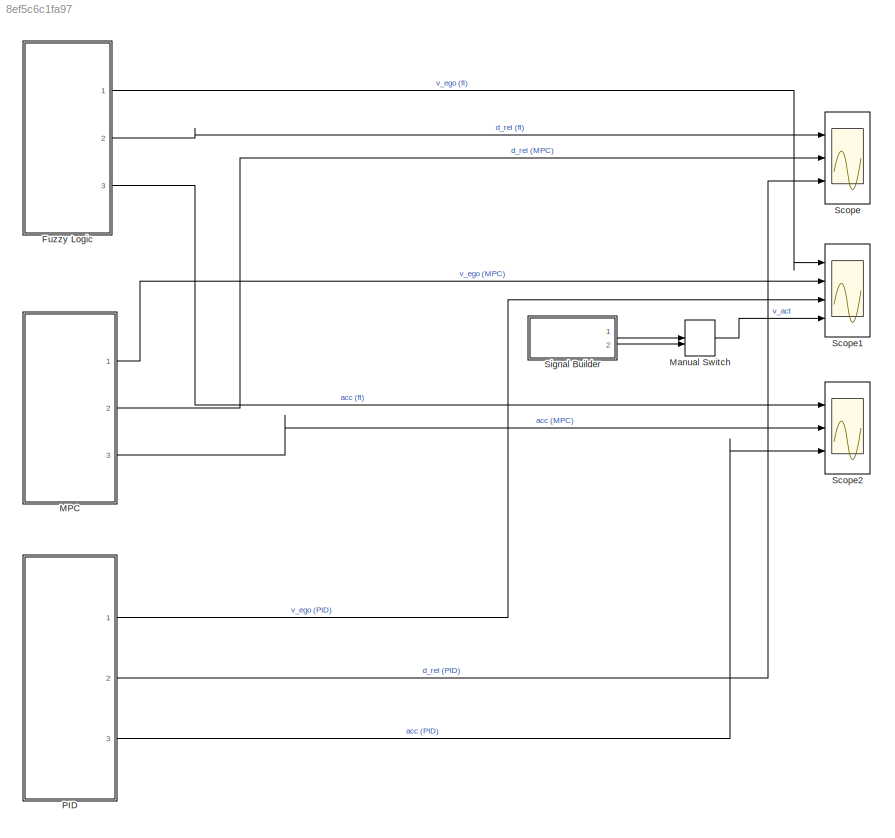
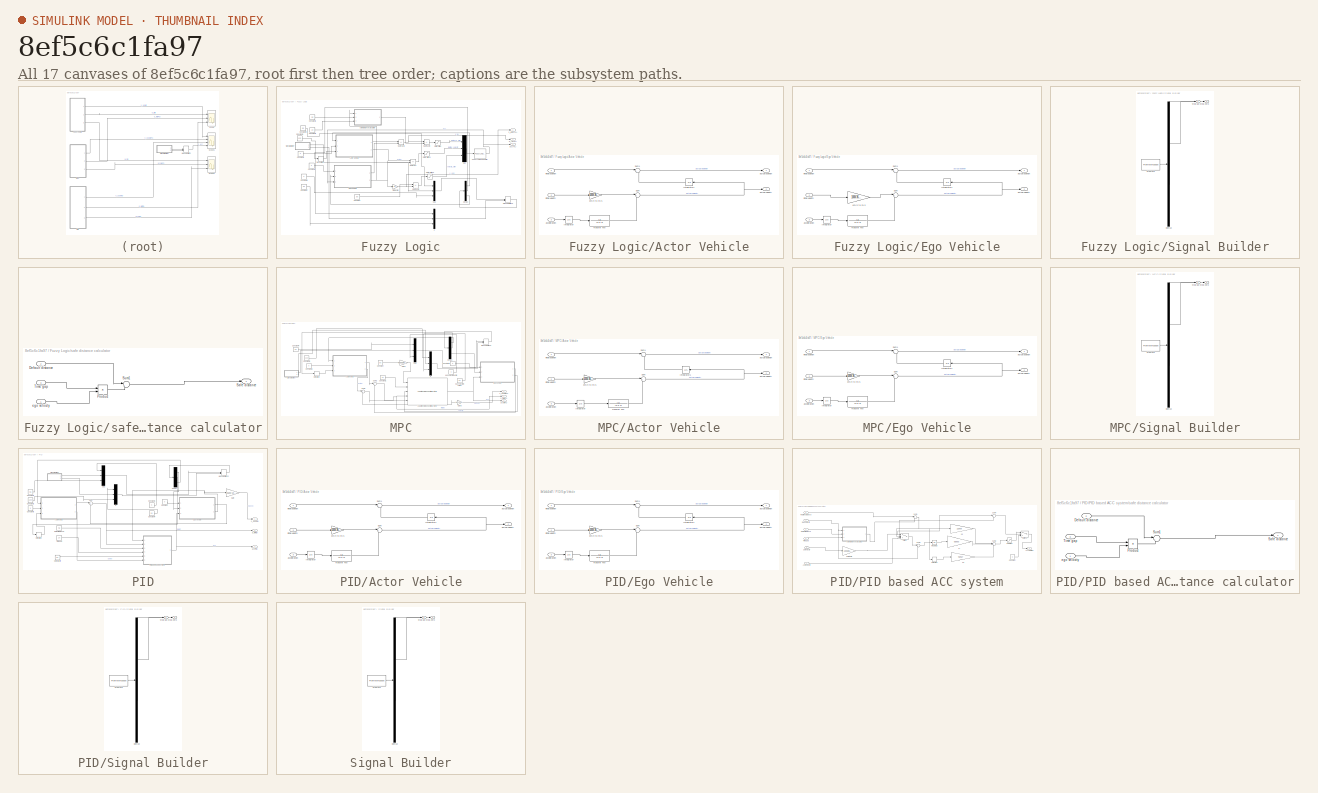
[diagram: thumbnail index - all 17 canvases of the model, root first then tree order]
MODEL slx_8ef5c6c1fa97
KIND model
CONFIG AbsTol = auto
CONFIG EnableMultiTasking = off
CONFIG FixedStep = auto
CONFIG MaxStep = auto
CONFIG MinStep = auto
CONFIG RelTol = 1e-3
CONFIG SampleTimeConstraint = Unconstrained
CONFIG SolverName = VariableStepAuto
CONFIG StartTime = 0.0
CONFIG StopTime = 100
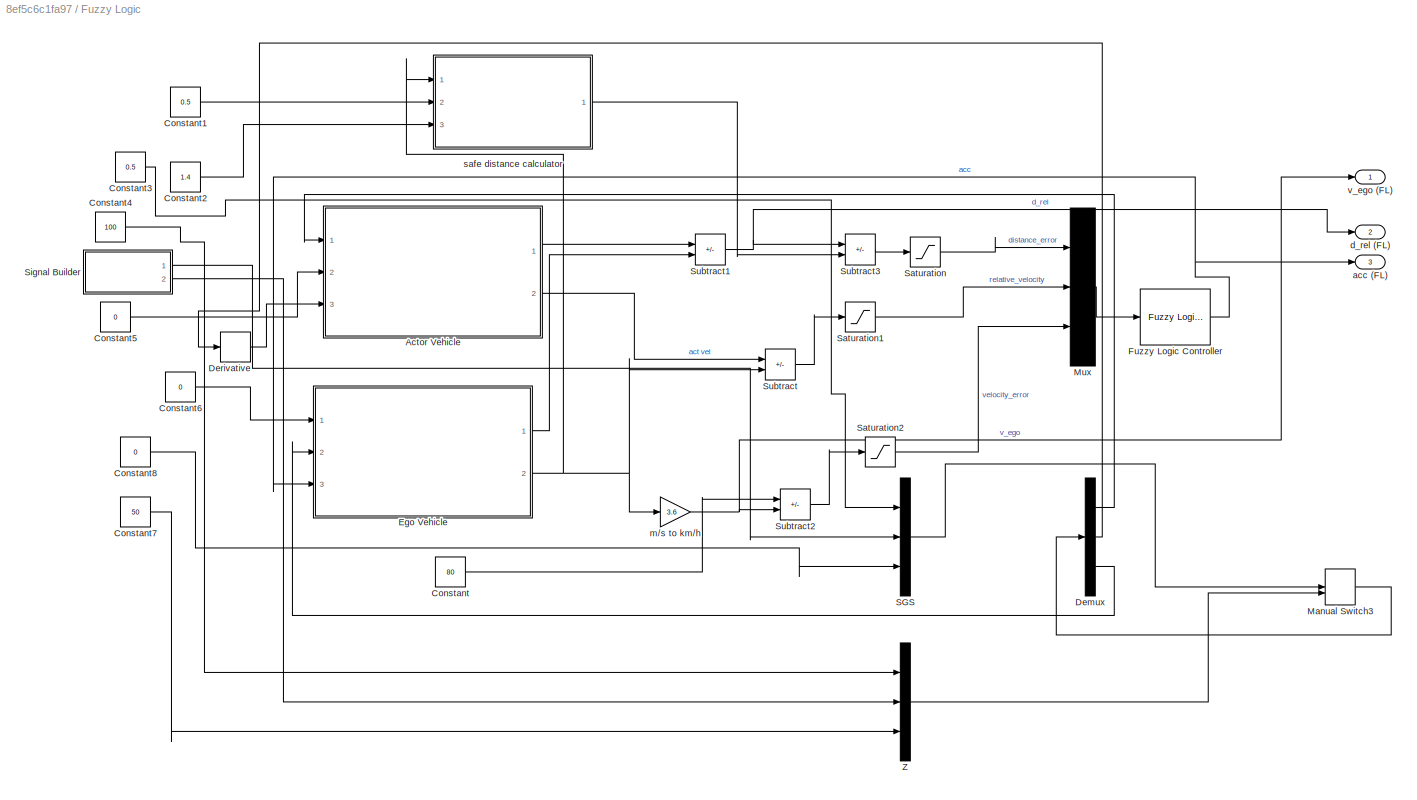
BLOCK [SubSystem] Fuzzy Logic
  Ports = [0, 3]
  RequestExecContextInheritance = off
BLOCK [SubSystem] Fuzzy Logic/Actor Vehicle
  Ports = [3, 2]
  RequestExecContextInheritance = off
BLOCK [Integrator] Fuzzy Logic/Actor Vehicle/Integrator
  Ports = [1, 1]
  ZeroCross = off
BLOCK [Integrator] Fuzzy Logic/Actor Vehicle/Integrator1
  Ports = [1, 1]
  ZeroCross = off
BLOCK [Sum] Fuzzy Logic/Actor Vehicle/Sum
  Inputs = |++
  Ports = [2, 1]
BLOCK [Sum] Fuzzy Logic/Actor Vehicle/Sum1
  Inputs = |++
  Ports = [2, 1]
BLOCK [TransferFcn] Fuzzy Logic/Actor Vehicle/Transfer Fcn
  Denominator = [0.5 1]
BLOCK [Inport] Fuzzy Logic/Actor Vehicle/acceleration
  Port = 3
BLOCK [Outport] Fuzzy Logic/Actor Vehicle/actual position
BLOCK [Outport] Fuzzy Logic/Actor Vehicle/actual velocity
  Port = 2
BLOCK [Inport] Fuzzy Logic/Actor Vehicle/initial position
BLOCK [Inport] Fuzzy Logic/Actor Vehicle/initial velocity
  Port = 2
BLOCK [Gain] Fuzzy Logic/Actor Vehicle/km//h to m//s
  Gain = 1000/3600
BLOCK [Constant] Fuzzy Logic/Constant
  SampleTime = 1
  Value = 80
BLOCK [Constant] Fuzzy Logic/Constant1
  SampleTime = 1
  Value = 0.5
BLOCK [Constant] Fuzzy Logic/Constant2
  SampleTime = 1
  Value = 1.4
BLOCK [Constant] Fuzzy Logic/Constant3
  SampleTime = 1
  Value = 0.5
BLOCK [Constant] Fuzzy Logic/Constant4
  SampleTime = 1
  Value = 100
BLOCK [Constant] Fuzzy Logic/Constant5
  SampleTime = 1
  Value = 0
BLOCK [Constant] Fuzzy Logic/Constant6
  SampleTime = 1
  Value = 0
BLOCK [Constant] Fuzzy Logic/Constant7
  SampleTime = 1
  Value = 50
BLOCK [Constant] Fuzzy Logic/Constant8
  SampleTime = 1
  Value = 0
BLOCK [Demux] Fuzzy Logic/Demux
  Outputs = 3
  Ports = [1, 3]
BLOCK [Derivative] Fuzzy Logic/Derivative
BLOCK [SubSystem] Fuzzy Logic/Ego Vehicle
  Ports = [3, 2]
  RequestExecContextInheritance = off
BLOCK [Integrator] Fuzzy Logic/Ego Vehicle/Integrator
  Ports = [1, 1]
  ZeroCross = off
BLOCK [Integrator] Fuzzy Logic/Ego Vehicle/Integrator1
  Ports = [1, 1]
  ZeroCross = off
BLOCK [Sum] Fuzzy Logic/Ego Vehicle/Sum
  Inputs = |++
  Ports = [2, 1]
BLOCK [Sum] Fuzzy Logic/Ego Vehicle/Sum1
  Inputs = |++
  Ports = [2, 1]
BLOCK [TransferFcn] Fuzzy Logic/Ego Vehicle/Transfer Fcn
  Denominator = [0.5 1]
BLOCK [Inport] Fuzzy Logic/Ego Vehicle/acceleration
  Port = 3
BLOCK [Outport] Fuzzy Logic/Ego Vehicle/actual position
BLOCK [Outport] Fuzzy Logic/Ego Vehicle/actual velocity
  Port = 2
BLOCK [Inport] Fuzzy Logic/Ego Vehicle/initial position
BLOCK [Inport] Fuzzy Logic/Ego Vehicle/initial velocity
  Port = 2
BLOCK [Gain] Fuzzy Logic/Ego Vehicle/km//h to m//s
  Gain = 1000/3600
BLOCK [Reference] Fuzzy Logic/Fuzzy Logic Controller  REF=fuzblock/Fuzzy Logic   (lib defined in mdl_858b3b3e7478)
Controller
  Ports = [1, 1]
  SourceBlock = fuzblock/Fuzzy Logic \nController
  SourceProductBaseCode = FL
  SourceType = Fuzzy Inference System
BLOCK [ManualSwitch] Fuzzy Logic/Manual Switch3
  CurrentSetting = 0
BLOCK [Mux] Fuzzy Logic/Mux
  DisplayOption = bar
  Inputs = 3
  Ports = [3, 1]
BLOCK [Mux] Fuzzy Logic/SGS
  DisplayOption = bar
  Inputs = 3
  Ports = [3, 1]
BLOCK [Saturate] Fuzzy Logic/Saturation
  LinearizeAsGain = off
  LowerLimit = -1
  UpperLimit = 1
  ZeroCross = off
BLOCK [Saturate] Fuzzy Logic/Saturation1
  LinearizeAsGain = off
  LowerLimit = -1
  UpperLimit = 1
  ZeroCross = off
BLOCK [Saturate] Fuzzy Logic/Saturation2
  LinearizeAsGain = off
  LowerLimit = -1
  UpperLimit = 1
  ZeroCross = off
BLOCK [SubSystem] Fuzzy Logic/Signal Builder
  ClipboardFcn = sigbuilder_block('clipboard');
  CloseFcn = sigbuilder_block('close');
  ContinueFcn = sigbuilder_block('continue');
  CopyFcn = sigbuilder_block('copy');
  DeleteFcn = sigbuilder_block('delete');
  LoadFcn = sigbuilder_block('load');
  MaskHideContents = on
  ModelCloseFcn = sigbuilder_block('modelClose');
  NameChangeFcn = sigbuilder_block('namechange');
  OpenFcn = sigbuilder_block('open',[393 134.4 550.8 400.2 ]);
  PauseFcn = sigbuilder_block('pause');
  Ports = [0, 2]
  PreSaveFcn = sigbuilder_block('preSave');
  RequestExecContextInheritance = off
  StartFcn = sigbuilder_block('start');
  StopFcn = sigbuilder_block('stop');
  Tag = STV Subsys
BLOCK [Demux] Fuzzy Logic/Signal Builder/Demux
  DisplayOption = none
  Outputs = 2
  Ports = [1, 2]
  Tag = STV Demux
BLOCK [FromWorkspace] Fuzzy Logic/Signal Builder/FromWs
  Tag = STV FromWs
  VariableName = tuvar
BLOCK [Outport] Fuzzy Logic/Signal Builder/stop-go-stop
  Tag = STV Outport
BLOCK [Outport] Fuzzy Logic/Signal Builder/zero
  Port = 2
  Tag = STV Outport
BLOCK [Sum] Fuzzy Logic/Subtract
  IconShape = rectangular
  Inputs = +-
  Ports = [2, 1]
BLOCK [Sum] Fuzzy Logic/Subtract1
  IconShape = rectangular
  Inputs = +-
  Ports = [2, 1]
BLOCK [Sum] Fuzzy Logic/Subtract2
  IconShape = rectangular
  Inputs = +-
  Ports = [2, 1]
BLOCK [Sum] Fuzzy Logic/Subtract3
  IconShape = rectangular
  Inputs = +-
  Ports = [2, 1]
BLOCK [Mux] Fuzzy Logic/Z
  DisplayOption = bar
  Inputs = 3
  Ports = [3, 1]
BLOCK [Outport] Fuzzy Logic/acc (FL)
  Port = 3
BLOCK [Outport] Fuzzy Logic/d_rel (FL)
  Port = 2
BLOCK [Gain] Fuzzy Logic/m//s to km//h
  Gain = 3.6
BLOCK [SubSystem] Fuzzy Logic/safe distance calculator
  Ports = [3, 1]
  RequestExecContextInheritance = off
BLOCK [Inport] Fuzzy Logic/safe distance calculator/Default distance
  Port = 2
BLOCK [Product] Fuzzy Logic/safe distance calculator/Product
  Ports = [2, 1]
BLOCK [Outport] Fuzzy Logic/safe distance calculator/Safe distance
BLOCK [Sum] Fuzzy Logic/safe distance calculator/Sum1
  Inputs = |++
  Ports = [2, 1]
BLOCK [Inport] Fuzzy Logic/safe distance calculator/Time gap
  Port = 3
BLOCK [Inport] Fuzzy Logic/safe distance calculator/ego velocity
BLOCK [Outport] Fuzzy Logic/v_ego (FL)
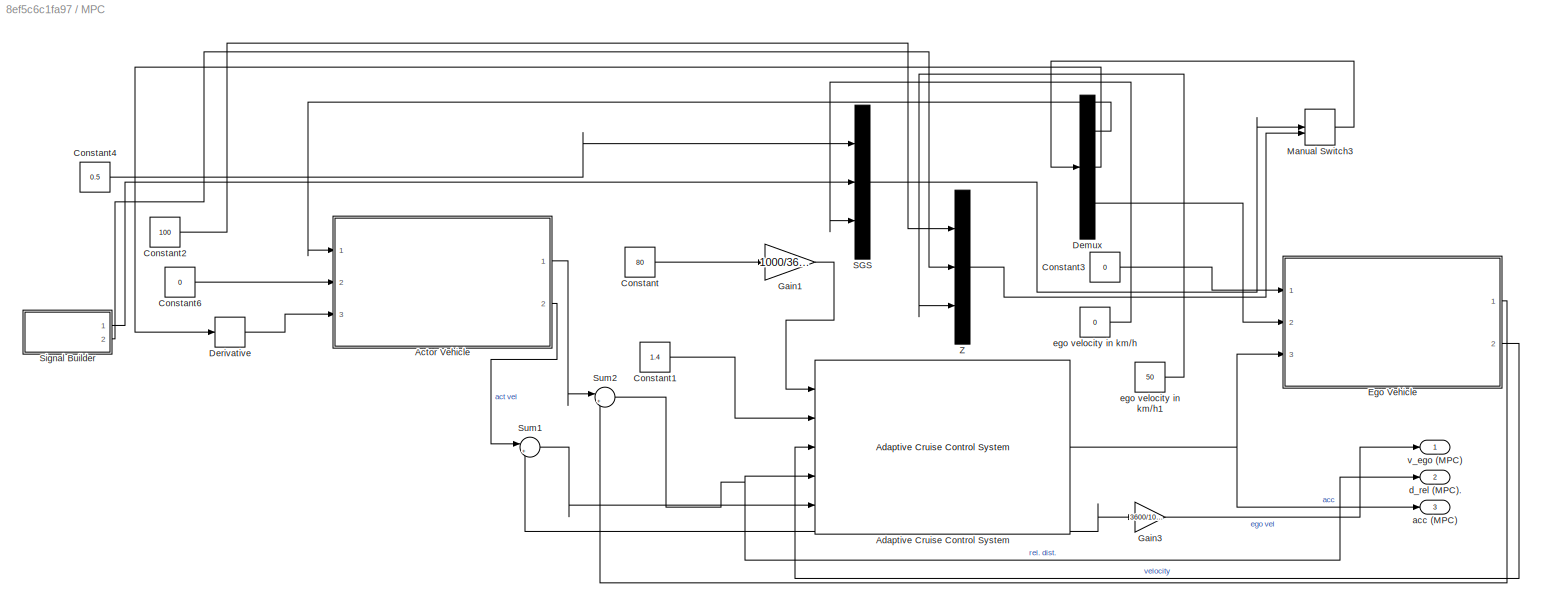
BLOCK [SubSystem] MPC
  Ports = [0, 3]
  RequestExecContextInheritance = off
BLOCK [SubSystem] MPC/Actor Vehicle
  Ports = [3, 2]
  RequestExecContextInheritance = off
BLOCK [Integrator] MPC/Actor Vehicle/Integrator
  Ports = [1, 1]
  ZeroCross = off
BLOCK [Integrator] MPC/Actor Vehicle/Integrator1
  Ports = [1, 1]
  ZeroCross = off
BLOCK [Sum] MPC/Actor Vehicle/Sum
  Inputs = |++
  Ports = [2, 1]
BLOCK [Sum] MPC/Actor Vehicle/Sum1
  Inputs = |++
  Ports = [2, 1]
BLOCK [TransferFcn] MPC/Actor Vehicle/Transfer Fcn
  Denominator = [0.5 1]
BLOCK [Inport] MPC/Actor Vehicle/acceleration
  Port = 3
BLOCK [Outport] MPC/Actor Vehicle/actual position
BLOCK [Outport] MPC/Actor Vehicle/actual velocity
  Port = 2
BLOCK [Inport] MPC/Actor Vehicle/initial position
BLOCK [Inport] MPC/Actor Vehicle/initial velocity
  Port = 2
BLOCK [Gain] MPC/Actor Vehicle/km//h to m//s
  Gain = 1000/3600
BLOCK [Reference] MPC/Adaptive Cruise Control System  REF=mpcadaslib/Adaptive Cruise Control System
  Ports = [5, 1]
  SourceBlock = mpcadaslib/Adaptive Cruise Control System
  SourceProductBaseCode = MP
  SourceType = Adaptive cruise control (ACC) system
BLOCK [Constant] MPC/Constant
  SampleTime = 0.5
  Value = 80
BLOCK [Constant] MPC/Constant1
  SampleTime = 0.5
  Value = 1.4
BLOCK [Constant] MPC/Constant2
  SampleTime = 0.5
  Value = 100
BLOCK [Constant] MPC/Constant3
  SampleTime = 0.5
  Value = 0
BLOCK [Constant] MPC/Constant4
  SampleTime = 0.5
  Value = 0.5
BLOCK [Constant] MPC/Constant6
  SampleTime = 0.5
  Value = 0
BLOCK [Demux] MPC/Demux
  Outputs = 3
  Ports = [1, 3]
BLOCK [Derivative] MPC/Derivative
BLOCK [SubSystem] MPC/Ego Vehicle
  Ports = [3, 2]
  RequestExecContextInheritance = off
BLOCK [Integrator] MPC/Ego Vehicle/Integrator
  Ports = [1, 1]
  ZeroCross = off
BLOCK [Integrator] MPC/Ego Vehicle/Integrator1
  Ports = [1, 1]
  ZeroCross = off
BLOCK [Sum] MPC/Ego Vehicle/Sum
  Inputs = |++
  Ports = [2, 1]
BLOCK [Sum] MPC/Ego Vehicle/Sum1
  Inputs = |++
  Ports = [2, 1]
BLOCK [TransferFcn] MPC/Ego Vehicle/Transfer Fcn
  Denominator = [0.5 1]
BLOCK [Inport] MPC/Ego Vehicle/acceleration
  Port = 3
BLOCK [Outport] MPC/Ego Vehicle/actual position
BLOCK [Outport] MPC/Ego Vehicle/actual velocity
  Port = 2
BLOCK [Inport] MPC/Ego Vehicle/initial position
BLOCK [Inport] MPC/Ego Vehicle/initial velocity
  Port = 2
BLOCK [Gain] MPC/Ego Vehicle/km//h to m//s
  Gain = 1000/3600
BLOCK [Gain] MPC/Gain1
  Gain = 1000/3600
BLOCK [Gain] MPC/Gain3
  Gain = 3600/1000
BLOCK [ManualSwitch] MPC/Manual Switch3
  CurrentSetting = 0
BLOCK [Mux] MPC/SGS
  DisplayOption = bar
  Inputs = 3
  Ports = [3, 1]
BLOCK [SubSystem] MPC/Signal Builder
  ClipboardFcn = sigbuilder_block('clipboard');
  CloseFcn = sigbuilder_block('close');
  ContinueFcn = sigbuilder_block('continue');
  CopyFcn = sigbuilder_block('copy');
  DeleteFcn = sigbuilder_block('delete');
  LoadFcn = sigbuilder_block('load');
  MaskHideContents = on
  ModelCloseFcn = sigbuilder_block('modelClose');
  NameChangeFcn = sigbuilder_block('namechange');
  OpenFcn = sigbuilder_block('open',[393 134.4 550.8 400.2 ]);
  PauseFcn = sigbuilder_block('pause');
  Ports = [0, 2]
  PreSaveFcn = sigbuilder_block('preSave');
  RequestExecContextInheritance = off
  StartFcn = sigbuilder_block('start');
  StopFcn = sigbuilder_block('stop');
  Tag = STV Subsys
BLOCK [Demux] MPC/Signal Builder/Demux
  DisplayOption = none
  Outputs = 2
  Ports = [1, 2]
  Tag = STV Demux
BLOCK [FromWorkspace] MPC/Signal Builder/FromWs
  Tag = STV FromWs
  VariableName = tuvar
BLOCK [Outport] MPC/Signal Builder/stop-go-stop
  Tag = STV Outport
BLOCK [Outport] MPC/Signal Builder/zero
  Port = 2
  Tag = STV Outport
BLOCK [Sum] MPC/Sum1
  Inputs = |+-
  Ports = [2, 1]
BLOCK [Sum] MPC/Sum2
  Inputs = |+-
  Ports = [2, 1]
BLOCK [Mux] MPC/Z
  DisplayOption = bar
  Inputs = 3
  Ports = [3, 1]
BLOCK [Outport] MPC/acc (MPC)
  Port = 3
BLOCK [Outport] MPC/d_rel (MPC).
  Port = 2
BLOCK [Constant] MPC/ego velocity in km//h
  SampleTime = 0.5
  Value = 0
BLOCK [Constant] MPC/ego velocity in km//h1
  SampleTime = 0.5
  Value = 50
BLOCK [Outport] MPC/v_ego (MPC)
BLOCK [ManualSwitch] Manual Switch
  CurrentSetting = 0
BLOCK [SubSystem] PID
  Ports = [0, 3]
  RequestExecContextInheritance = off
BLOCK [SubSystem] PID/Actor Vehicle
  Ports = [3, 2]
  RequestExecContextInheritance = off
BLOCK [Integrator] PID/Actor Vehicle/Integrator
  Ports = [1, 1]
BLOCK [Integrator] PID/Actor Vehicle/Integrator1
  Ports = [1, 1]
BLOCK [Sum] PID/Actor Vehicle/Sum
  Inputs = |++
  Ports = [2, 1]
BLOCK [Sum] PID/Actor Vehicle/Sum1
  Inputs = |++
  Ports = [2, 1]
BLOCK [TransferFcn] PID/Actor Vehicle/Transfer Fcn
  Denominator = [0.5 1]
BLOCK [Inport] PID/Actor Vehicle/acceleration
  Port = 3
BLOCK [Outport] PID/Actor Vehicle/actual position
BLOCK [Outport] PID/Actor Vehicle/actual velocity
  Port = 2
BLOCK [Inport] PID/Actor Vehicle/initial position
BLOCK [Inport] PID/Actor Vehicle/initial velocity
  Port = 2
BLOCK [Gain] PID/Actor Vehicle/km//h to m//s
  Gain = 1000/3600
BLOCK [Constant] PID/Constant
  SampleTime = .1
  Value = 0
BLOCK [Constant] PID/Constant1
  SampleTime = .1
  Value = 0
BLOCK [Constant] PID/Constant2
  SampleTime = .1
  Value = 0.5
BLOCK [Constant] PID/Constant3
  SampleTime = .1
  Value = 100
BLOCK [Constant] PID/Constant4
  SampleTime = .1
  Value = 50
BLOCK [Constant] PID/Constant6
  SampleTime = .1
  Value = 0
BLOCK [Constant] PID/Default distance
  SampleTime = .1
  Value = 0.5
BLOCK [Demux] PID/Demux
  Outputs = 3
  Ports = [1, 3]
BLOCK [Derivative] PID/Derivative
BLOCK [SubSystem] PID/Ego Vehicle
  Ports = [3, 2]
  RequestExecContextInheritance = off
BLOCK [Integrator] PID/Ego Vehicle/Integrator
  Ports = [1, 1]
BLOCK [Integrator] PID/Ego Vehicle/Integrator1
  Ports = [1, 1]
BLOCK [Sum] PID/Ego Vehicle/Sum
  Inputs = |++
  Ports = [2, 1]
BLOCK [Sum] PID/Ego Vehicle/Sum1
  Inputs = |++
  Ports = [2, 1]
BLOCK [TransferFcn] PID/Ego Vehicle/Transfer Fcn
  Denominator = [0.5 1]
BLOCK [Inport] PID/Ego Vehicle/acceleration
  Port = 3
BLOCK [Outport] PID/Ego Vehicle/actual position
BLOCK [Outport] PID/Ego Vehicle/actual velocity
  Port = 2
BLOCK [Inport] PID/Ego Vehicle/initial position
BLOCK [Inport] PID/Ego Vehicle/initial velocity
  Port = 2
BLOCK [Gain] PID/Ego Vehicle/km//h to m//s
  Gain = 1000/3600
BLOCK [Gain] PID/Gain
  Gain = 3600/1000
BLOCK [ManualSwitch] PID/Manual Switch2
  CurrentSetting = 0
BLOCK [SubSystem] PID/PID based ACC system
  Ports = [6, 1]
  RequestExecContextInheritance = off
BLOCK [Outport] PID/PID based ACC system/Acceleration
BLOCK [Inport] PID/PID based ACC system/Actor velocity
  Port = 6
BLOCK [Constant] PID/PID based ACC system/Constant
  SampleTime = .1
  Value = 0
BLOCK [Inport] PID/PID based ACC system/Default distance
  Port = 3
BLOCK [Derivative] PID/PID based ACC system/Derivative
BLOCK [Inport] PID/PID based ACC system/Ego velocity
BLOCK [Integrator] PID/PID based ACC system/Integrator2
  Ports = [1, 1]
BLOCK [Inport] PID/PID based ACC system/Relative distance
  Port = 2
BLOCK [Saturate] PID/PID based ACC system/Saturation
  LinearizeAsGain = off
  LowerLimit = -3
  UpperLimit = 2
  ZeroCross = off
BLOCK [Inport] PID/PID based ACC system/Set velocity
  Port = 5
BLOCK [Sum] PID/PID based ACC system/Sum1
  Inputs = |+-
  Ports = [2, 1]
BLOCK [Sum] PID/PID based ACC system/Sum2
  Inputs = |+++
  Ports = [3, 1]
BLOCK [Sum] PID/PID based ACC system/Sum3
  Inputs = |+-
  Ports = [2, 1]
BLOCK [Sum] PID/PID based ACC system/Sum4
  Inputs = |+-
  Ports = [2, 1]
BLOCK [Switch] PID/PID based ACC system/Switch
  InputSameDT = off
  SaturateOnIntegerOverflow = off
BLOCK [Switch] PID/PID based ACC system/Switch1
  InputSameDT = off
  SaturateOnIntegerOverflow = off
BLOCK [Inport] PID/PID based ACC system/Time gap
  Port = 4
BLOCK [Gain] PID/PID based ACC system/kd
  Gain = 4.8967
BLOCK [Gain] PID/PID based ACC system/ki
  Gain = 0.0003
BLOCK [Gain] PID/PID based ACC system/km//h to m//s
  Gain = 1000/3600
BLOCK [Gain] PID/PID based ACC system/kp
  Gain = 2.2659
BLOCK [SubSystem] PID/PID based ACC system/safe distance calculator
  Ports = [3, 1]
  RequestExecContextInheritance = off
BLOCK [Inport] PID/PID based ACC system/safe distance calculator/Default distance
  Port = 2
BLOCK [Product] PID/PID based ACC system/safe distance calculator/Product
  Ports = [2, 1]
BLOCK [Outport] PID/PID based ACC system/safe distance calculator/Safe distance
BLOCK [Sum] PID/PID based ACC system/safe distance calculator/Sum1
  Inputs = |++
  Ports = [2, 1]
BLOCK [Inport] PID/PID based ACC system/safe distance calculator/Time gap
  Port = 3
BLOCK [Inport] PID/PID based ACC system/safe distance calculator/ego velocity
BLOCK [Mux] PID/SGS
  DisplayOption = bar
  Inputs = 3
  Ports = [3, 1]
BLOCK [Constant] PID/Set velocity
  SampleTime = .1
  Value = 80
BLOCK [SubSystem] PID/Signal Builder
  ClipboardFcn = sigbuilder_block('clipboard');
  CloseFcn = sigbuilder_block('close');
  ContinueFcn = sigbuilder_block('continue');
  CopyFcn = sigbuilder_block('copy');
  DeleteFcn = sigbuilder_block('delete');
  LoadFcn = sigbuilder_block('load');
  MaskHideContents = on
  ModelCloseFcn = sigbuilder_block('modelClose');
  NameChangeFcn = sigbuilder_block('namechange');
  OpenFcn = sigbuilder_block('open',[393 134.4 550.8 400.2 ]);
  PauseFcn = sigbuilder_block('pause');
  Ports = [0, 2]
  PreSaveFcn = sigbuilder_block('preSave');
  RequestExecContextInheritance = off
  StartFcn = sigbuilder_block('start');
  StopFcn = sigbuilder_block('stop');
  Tag = STV Subsys
BLOCK [Demux] PID/Signal Builder/Demux
  DisplayOption = none
  Outputs = 2
  Ports = [1, 2]
  Tag = STV Demux
BLOCK [FromWorkspace] PID/Signal Builder/FromWs
  Tag = STV FromWs
  VariableName = tuvar
BLOCK [Outport] PID/Signal Builder/stop-go-stop
  Tag = STV Outport
BLOCK [Outport] PID/Signal Builder/zero
  Port = 2
  Tag = STV Outport
BLOCK [Sum] PID/Sum
  Inputs = |+-
  Ports = [2, 1]
BLOCK [Constant] PID/Time gap
  SampleTime = .1
  Value = 1.4
BLOCK [Mux] PID/Z
  DisplayOption = bar
  Inputs = 3
  Ports = [3, 1]
BLOCK [Outport] PID/acc (PID)
  Port = 3
BLOCK [Outport] PID/d_rel (PID)
  Port = 2
BLOCK [Outport] PID/v_ego (PID)
BLOCK [Scope] Scope
  Floating = off
  NumInputPorts = 3
  Ports = [3]
  ScopeSpecificationString = Simulink.scopes.TimeScopeBlockCfg('CurrentConfiguration', extmgr.ConfigurationSet(extmgr.Configuration('Core','General UI',true,'FigureColor',[1 1 1],'DisplayFullSourceName',true),extmgr.Configuration('Core','Source UI',true),extmgr.Configuration('Sources','WiredSimulink',true),extmgr.Configuration('Visuals','Time Domain',true,'TimeAxisLabels','All','SerializedDisplays',{struct('MinYLimReal','-13....<+2003ch>
BLOCK [Scope] Scope1
  Floating = off
  NumInputPorts = 4
  Ports = [4]
  ScopeSpecificationString = Simulink.scopes.TimeScopeBlockCfg('CurrentConfiguration', extmgr.ConfigurationSet(extmgr.Configuration('Core','General UI',true,'FigureColor',[1 1 1]),extmgr.Configuration('Core','Source UI',true),extmgr.Configuration('Sources','WiredSimulink',true,'DataLoggingVariableName','ScopeData1'),extmgr.Configuration('Visuals','Time Domain',true,'TimeAxisLabels','All','SerializedDisplays',{struct('MinYLimR...<+2133ch>
BLOCK [Scope] Scope2
  Floating = off
  NumInputPorts = 3
  Ports = [3]
  ScopeSpecificationString = Simulink.scopes.TimeScopeBlockCfg('CurrentConfiguration', extmgr.ConfigurationSet(extmgr.Configuration('Core','General UI',true,'FigureColor',[1 1 1]),extmgr.Configuration('Core','Source UI',true),extmgr.Configuration('Sources','WiredSimulink',true,'DataLoggingVariableName','ScopeData2'),extmgr.Configuration('Visuals','Time Domain',true,'TimeAxisLabels','All','SerializedDisplays',{struct('MinYLimR...<+3452ch>
BLOCK [SubSystem] Signal Builder
  ClipboardFcn = sigbuilder_block('clipboard');
  CloseFcn = sigbuilder_block('close');
  ContinueFcn = sigbuilder_block('continue');
  CopyFcn = sigbuilder_block('copy');
  DeleteFcn = sigbuilder_block('delete');
  LoadFcn = sigbuilder_block('load');
  MaskHideContents = on
  ModelCloseFcn = sigbuilder_block('modelClose');
  NameChangeFcn = sigbuilder_block('namechange');
  OpenFcn = sigbuilder_block('open',[393 134.4 550.8 400.2 ]);
  PauseFcn = sigbuilder_block('pause');
  Ports = [0, 2]
  PreSaveFcn = sigbuilder_block('preSave');
  RequestExecContextInheritance = off
  StartFcn = sigbuilder_block('start');
  StopFcn = sigbuilder_block('stop');
  Tag = STV Subsys
BLOCK [Demux] Signal Builder/Demux
  DisplayOption = none
  Outputs = 2
  Ports = [1, 2]
  Tag = STV Demux
BLOCK [FromWorkspace] Signal Builder/FromWs
  Tag = STV FromWs
  VariableName = tuvar
BLOCK [Outport] Signal Builder/stop-go-stop
  Tag = STV Outport
BLOCK [Outport] Signal Builder/zero
  Port = 2
  Tag = STV Outport
LINE Fuzzy Logic/Actor Vehicle/Integrator1:1 -> Fuzzy Logic/Actor Vehicle/Sum1:2
LINE Fuzzy Logic/Actor Vehicle/Integrator:1 -> Fuzzy Logic/Actor Vehicle/Transfer Fcn:1
LINE Fuzzy Logic/Actor Vehicle/Sum1:1 -> Fuzzy Logic/Actor Vehicle/actual position:1
NET Fuzzy Logic/Actor Vehicle/Sum:1 -> Fuzzy Logic/Actor Vehicle/Integrator1:1, Fuzzy Logic/Actor Vehicle/actual velocity:1
LINE Fuzzy Logic/Actor Vehicle/Transfer Fcn:1 -> Fuzzy Logic/Actor Vehicle/Sum:2
LINE Fuzzy Logic/Actor Vehicle/acceleration:1 -> Fuzzy Logic/Actor Vehicle/Integrator:1
LINE Fuzzy Logic/Actor Vehicle/initial position:1 -> Fuzzy Logic/Actor Vehicle/Sum1:1
LINE Fuzzy Logic/Actor Vehicle/initial velocity:1 -> Fuzzy Logic/Actor Vehicle/km//h to m//s:1
LINE Fuzzy Logic/Actor Vehicle/km//h to m//s:1 -> Fuzzy Logic/Actor Vehicle/Sum:1
LINE Fuzzy Logic/Actor Vehicle:1 -> Fuzzy Logic/Subtract1:1
LINE Fuzzy Logic/Actor Vehicle:2 -> Fuzzy Logic/Subtract:1
LINE Fuzzy Logic/Constant1:1 -> Fuzzy Logic/safe distance calculator:2
LINE Fuzzy Logic/Constant2:1 -> Fuzzy Logic/safe distance calculator:3
LINE Fuzzy Logic/Constant3:1 -> Fuzzy Logic/SGS:1
LINE Fuzzy Logic/Constant4:1 -> Fuzzy Logic/Z:1
LINE Fuzzy Logic/Constant5:1 -> Fuzzy Logic/Actor Vehicle:2
LINE Fuzzy Logic/Constant6:1 -> Fuzzy Logic/Ego Vehicle:1
LINE Fuzzy Logic/Constant7:1 -> Fuzzy Logic/Z:3
LINE Fuzzy Logic/Constant8:1 -> Fuzzy Logic/SGS:3
LINE Fuzzy Logic/Constant:1 -> Fuzzy Logic/Subtract2:1
LINE Fuzzy Logic/Demux:1 -> Fuzzy Logic/Actor Vehicle:1
LINE Fuzzy Logic/Demux:2 -> Fuzzy Logic/Derivative:1
LINE Fuzzy Logic/Demux:3 -> Fuzzy Logic/Ego Vehicle:2
LINE Fuzzy Logic/Derivative:1 -> Fuzzy Logic/Actor Vehicle:3
LINE Fuzzy Logic/Ego Vehicle/Integrator1:1 -> Fuzzy Logic/Ego Vehicle/Sum1:2
LINE Fuzzy Logic/Ego Vehicle/Integrator:1 -> Fuzzy Logic/Ego Vehicle/Transfer Fcn:1
LINE Fuzzy Logic/Ego Vehicle/Sum1:1 -> Fuzzy Logic/Ego Vehicle/actual position:1
NET Fuzzy Logic/Ego Vehicle/Sum:1 -> Fuzzy Logic/Ego Vehicle/Integrator1:1, Fuzzy Logic/Ego Vehicle/actual velocity:1
LINE Fuzzy Logic/Ego Vehicle/Transfer Fcn:1 -> Fuzzy Logic/Ego Vehicle/Sum:2
LINE Fuzzy Logic/Ego Vehicle/acceleration:1 -> Fuzzy Logic/Ego Vehicle/Integrator:1
LINE Fuzzy Logic/Ego Vehicle/initial position:1 -> Fuzzy Logic/Ego Vehicle/Sum1:1
LINE Fuzzy Logic/Ego Vehicle/initial velocity:1 -> Fuzzy Logic/Ego Vehicle/km//h to m//s:1
LINE Fuzzy Logic/Ego Vehicle/km//h to m//s:1 -> Fuzzy Logic/Ego Vehicle/Sum:1
LINE Fuzzy Logic/Ego Vehicle:1 -> Fuzzy Logic/Subtract1:2
NET Fuzzy Logic/Ego Vehicle:2 -> Fuzzy Logic/Subtract:2, Fuzzy Logic/m//s to km//h:1, Fuzzy Logic/safe distance calculator:1
NET Fuzzy Logic/Fuzzy Logic Controller:1 -> Fuzzy Logic/Ego Vehicle:3, Fuzzy Logic/acc (FL):1
LINE Fuzzy Logic/Manual Switch3:1 -> Fuzzy Logic/Demux:1
LINE Fuzzy Logic/Mux:1 -> Fuzzy Logic/Fuzzy Logic Controller:1
LINE Fuzzy Logic/SGS:1 -> Fuzzy Logic/Manual Switch3:1
LINE Fuzzy Logic/Saturation1:1 -> Fuzzy Logic/Mux:2
LINE Fuzzy Logic/Saturation2:1 -> Fuzzy Logic/Mux:3
LINE Fuzzy Logic/Saturation:1 -> Fuzzy Logic/Mux:1
LINE Fuzzy Logic/Signal Builder:1 -> Fuzzy Logic/SGS:2
LINE Fuzzy Logic/Signal Builder:2 -> Fuzzy Logic/Z:2
NET Fuzzy Logic/Subtract1:1 -> Fuzzy Logic/Subtract3:1, Fuzzy Logic/d_rel (FL):1
LINE Fuzzy Logic/Subtract2:1 -> Fuzzy Logic/Saturation2:1
LINE Fuzzy Logic/Subtract3:1 -> Fuzzy Logic/Saturation:1
LINE Fuzzy Logic/Subtract:1 -> Fuzzy Logic/Saturation1:1
LINE Fuzzy Logic/Z:1 -> Fuzzy Logic/Manual Switch3:2
NET Fuzzy Logic/m//s to km//h:1 -> Fuzzy Logic/Subtract2:2, Fuzzy Logic/v_ego (FL):1
LINE Fuzzy Logic/safe distance calculator/Default distance:1 -> Fuzzy Logic/safe distance calculator/Sum1:1
LINE Fuzzy Logic/safe distance calculator/Product:1 -> Fuzzy Logic/safe distance calculator/Sum1:2
LINE Fuzzy Logic/safe distance calculator/Sum1:1 -> Fuzzy Logic/safe distance calculator/Safe distance:1
LINE Fuzzy Logic/safe distance calculator/Time gap:1 -> Fuzzy Logic/safe distance calculator/Product:1
LINE Fuzzy Logic/safe distance calculator/ego velocity:1 -> Fuzzy Logic/safe distance calculator/Product:2
LINE Fuzzy Logic/safe distance calculator:1 -> Fuzzy Logic/Subtract3:2
LINE Fuzzy Logic:1 -> Scope1:1
LINE Fuzzy Logic:2 -> Scope:1
LINE Fuzzy Logic:3 -> Scope2:1
LINE MPC/Actor Vehicle/Integrator1:1 -> MPC/Actor Vehicle/Sum1:2
LINE MPC/Actor Vehicle/Integrator:1 -> MPC/Actor Vehicle/Transfer Fcn:1
LINE MPC/Actor Vehicle/Sum1:1 -> MPC/Actor Vehicle/actual position:1
NET MPC/Actor Vehicle/Sum:1 -> MPC/Actor Vehicle/Integrator1:1, MPC/Actor Vehicle/actual velocity:1
LINE MPC/Actor Vehicle/Transfer Fcn:1 -> MPC/Actor Vehicle/Sum:2
LINE MPC/Actor Vehicle/acceleration:1 -> MPC/Actor Vehicle/Integrator:1
LINE MPC/Actor Vehicle/initial position:1 -> MPC/Actor Vehicle/Sum1:1
LINE MPC/Actor Vehicle/initial velocity:1 -> MPC/Actor Vehicle/km//h to m//s:1
LINE MPC/Actor Vehicle/km//h to m//s:1 -> MPC/Actor Vehicle/Sum:1
LINE MPC/Actor Vehicle:1 -> MPC/Sum2:1
LINE MPC/Actor Vehicle:2 -> MPC/Sum1:1
NET MPC/Adaptive Cruise Control System:1 -> MPC/Ego Vehicle:3, MPC/acc (MPC):1
LINE MPC/Constant1:1 -> MPC/Adaptive Cruise Control System:2
LINE MPC/Constant2:1 -> MPC/Z:1
LINE MPC/Constant3:1 -> MPC/Ego Vehicle:1
LINE MPC/Constant4:1 -> MPC/SGS:1
LINE MPC/Constant6:1 -> MPC/Actor Vehicle:2
LINE MPC/Constant:1 -> MPC/Gain1:1
LINE MPC/Demux:1 -> MPC/Actor Vehicle:1
LINE MPC/Demux:2 -> MPC/Derivative:1
LINE MPC/Demux:3 -> MPC/Ego Vehicle:2
LINE MPC/Derivative:1 -> MPC/Actor Vehicle:3
LINE MPC/Ego Vehicle/Integrator1:1 -> MPC/Ego Vehicle/Sum1:2
LINE MPC/Ego Vehicle/Integrator:1 -> MPC/Ego Vehicle/Transfer Fcn:1
LINE MPC/Ego Vehicle/Sum1:1 -> MPC/Ego Vehicle/actual position:1
NET MPC/Ego Vehicle/Sum:1 -> MPC/Ego Vehicle/Integrator1:1, MPC/Ego Vehicle/actual velocity:1
LINE MPC/Ego Vehicle/Transfer Fcn:1 -> MPC/Ego Vehicle/Sum:2
LINE MPC/Ego Vehicle/acceleration:1 -> MPC/Ego Vehicle/Integrator:1
LINE MPC/Ego Vehicle/initial position:1 -> MPC/Ego Vehicle/Sum1:1
LINE MPC/Ego Vehicle/initial velocity:1 -> MPC/Ego Vehicle/km//h to m//s:1
LINE MPC/Ego Vehicle/km//h to m//s:1 -> MPC/Ego Vehicle/Sum:1
LINE MPC/Ego Vehicle:1 -> MPC/Sum2:2
NET MPC/Ego Vehicle:2 -> MPC/Adaptive Cruise Control System:3, MPC/Gain3:1, MPC/Sum1:2
LINE MPC/Gain1:1 -> MPC/Adaptive Cruise Control System:1
LINE MPC/Gain3:1 -> MPC/v_ego (MPC):1
LINE MPC/Manual Switch3:1 -> MPC/Demux:1
LINE MPC/SGS:1 -> MPC/Manual Switch3:1
LINE MPC/Signal Builder:1 -> MPC/SGS:2
LINE MPC/Signal Builder:2 -> MPC/Z:2
LINE MPC/Sum1:1 -> MPC/Adaptive Cruise Control System:5
NET MPC/Sum2:1 -> MPC/Adaptive Cruise Control System:4, MPC/d_rel (MPC).:1
LINE MPC/Z:1 -> MPC/Manual Switch3:2
LINE MPC/ego velocity in km//h1:1 -> MPC/Z:3
LINE MPC/ego velocity in km//h:1 -> MPC/SGS:3
LINE MPC:1 -> Scope1:2
LINE MPC:2 -> Scope:2
LINE MPC:3 -> Scope2:2
LINE Manual Switch:1 -> Scope1:4
LINE PID/Actor Vehicle/Integrator1:1 -> PID/Actor Vehicle/Sum1:2
LINE PID/Actor Vehicle/Integrator:1 -> PID/Actor Vehicle/Transfer Fcn:1
LINE PID/Actor Vehicle/Sum1:1 -> PID/Actor Vehicle/actual position:1
NET PID/Actor Vehicle/Sum:1 -> PID/Actor Vehicle/Integrator1:1, PID/Actor Vehicle/actual velocity:1
LINE PID/Actor Vehicle/Transfer Fcn:1 -> PID/Actor Vehicle/Sum:2
LINE PID/Actor Vehicle/acceleration:1 -> PID/Actor Vehicle/Integrator:1
LINE PID/Actor Vehicle/initial position:1 -> PID/Actor Vehicle/Sum1:1
LINE PID/Actor Vehicle/initial velocity:1 -> PID/Actor Vehicle/km//h to m//s:1
LINE PID/Actor Vehicle/km//h to m//s:1 -> PID/Actor Vehicle/Sum:1
LINE PID/Actor Vehicle:1 -> PID/Sum:1
LINE PID/Actor Vehicle:2 -> PID/PID based ACC system:6
LINE PID/Constant1:1 -> PID/SGS:1
LINE PID/Constant2:1 -> PID/SGS:3
LINE PID/Constant3:1 -> PID/Z:3
LINE PID/Constant4:1 -> PID/Z:1
LINE PID/Constant6:1 -> PID/Actor Vehicle:2
LINE PID/Constant:1 -> PID/Ego Vehicle:1
LINE PID/Default distance:1 -> PID/PID based ACC system:3
LINE PID/Demux:1 -> PID/Ego Vehicle:2
LINE PID/Demux:2 -> PID/Derivative:1
LINE PID/Demux:3 -> PID/Actor Vehicle:1
LINE PID/Derivative:1 -> PID/Actor Vehicle:3
LINE PID/Ego Vehicle/Integrator1:1 -> PID/Ego Vehicle/Sum1:2
LINE PID/Ego Vehicle/Integrator:1 -> PID/Ego Vehicle/Transfer Fcn:1
LINE PID/Ego Vehicle/Sum1:1 -> PID/Ego Vehicle/actual position:1
NET PID/Ego Vehicle/Sum:1 -> PID/Ego Vehicle/Integrator1:1, PID/Ego Vehicle/actual velocity:1
LINE PID/Ego Vehicle/Transfer Fcn:1 -> PID/Ego Vehicle/Sum:2
LINE PID/Ego Vehicle/acceleration:1 -> PID/Ego Vehicle/Integrator:1
LINE PID/Ego Vehicle/initial position:1 -> PID/Ego Vehicle/Sum1:1
LINE PID/Ego Vehicle/initial velocity:1 -> PID/Ego Vehicle/km//h to m//s:1
LINE PID/Ego Vehicle/km//h to m//s:1 -> PID/Ego Vehicle/Sum:1
LINE PID/Ego Vehicle:1 -> PID/Sum:2
NET PID/Ego Vehicle:2 -> PID/Gain:1, PID/PID based ACC system:1
LINE PID/Gain:1 -> PID/v_ego (PID):1
LINE PID/Manual Switch2:1 -> PID/Demux:1
NET PID/PID based ACC system/Actor velocity:1 -> PID/PID based ACC system/Sum4:2, PID/PID based ACC system/Switch:3
LINE PID/PID based ACC system/Constant:1 -> PID/PID based ACC system/Switch1:3
LINE PID/PID based ACC system/Default distance:1 -> PID/PID based ACC system/safe distance calculator:2
LINE PID/PID based ACC system/Derivative:1 -> PID/PID based ACC system/kd:1
NET PID/PID based ACC system/Ego velocity:1 -> PID/PID based ACC system/Sum3:2, PID/PID based ACC system/safe distance calculator:1
LINE PID/PID based ACC system/Integrator2:1 -> PID/PID based ACC system/ki:1
LINE PID/PID based ACC system/Relative distance:1 -> PID/PID based ACC system/Sum1:1
LINE PID/PID based ACC system/Saturation:1 -> PID/PID based ACC system/Switch1:1
LINE PID/PID based ACC system/Set velocity:1 -> PID/PID based ACC system/km//h to m//s:1
NET PID/PID based ACC system/Sum1:1 -> PID/PID based ACC system/Derivative:1, PID/PID based ACC system/Switch:2, PID/PID based ACC system/kp:1
LINE PID/PID based ACC system/Sum2:1 -> PID/PID based ACC system/Saturation:1
LINE PID/PID based ACC system/Sum3:1 -> PID/PID based ACC system/Integrator2:1
LINE PID/PID based ACC system/Sum4:1 -> PID/PID based ACC system/Switch1:2
LINE PID/PID based ACC system/Switch1:1 -> PID/PID based ACC system/Acceleration:1
LINE PID/PID based ACC system/Switch:1 -> PID/PID based ACC system/Sum3:1
LINE PID/PID based ACC system/Time gap:1 -> PID/PID based ACC system/safe distance calculator:3
LINE PID/PID based ACC system/kd:1 -> PID/PID based ACC system/Sum2:3
LINE PID/PID based ACC system/ki:1 -> PID/PID based ACC system/Sum2:2
NET PID/PID based ACC system/km//h to m//s:1 -> PID/PID based ACC system/Sum4:1, PID/PID based ACC system/Switch:1
LINE PID/PID based ACC system/kp:1 -> PID/PID based ACC system/Sum2:1
LINE PID/PID based ACC system/safe distance calculator/Default distance:1 -> PID/PID based ACC system/safe distance calculator/Sum1:1
LINE PID/PID based ACC system/safe distance calculator/Product:1 -> PID/PID based ACC system/safe distance calculator/Sum1:2
LINE PID/PID based ACC system/safe distance calculator/Sum1:1 -> PID/PID based ACC system/safe distance calculator/Safe distance:1
LINE PID/PID based ACC system/safe distance calculator/Time gap:1 -> PID/PID based ACC system/safe distance calculator/Product:1
LINE PID/PID based ACC system/safe distance calculator/ego velocity:1 -> PID/PID based ACC system/safe distance calculator/Product:2
LINE PID/PID based ACC system/safe distance calculator:1 -> PID/PID based ACC system/Sum1:2
NET PID/PID based ACC system:1 -> PID/Ego Vehicle:3, PID/acc (PID):1
LINE PID/SGS:1 -> PID/Manual Switch2:1
LINE PID/Set velocity:1 -> PID/PID based ACC system:5
LINE PID/Signal Builder:1 -> PID/SGS:2
LINE PID/Signal Builder:2 -> PID/Z:2
NET PID/Sum:1 -> PID/PID based ACC system:2, PID/d_rel (PID):1
LINE PID/Time gap:1 -> PID/PID based ACC system:4
LINE PID/Z:1 -> PID/Manual Switch2:2
LINE PID:1 -> Scope1:3
LINE PID:2 -> Scope:3
LINE PID:3 -> Scope2:3
LINE Signal Builder:1 -> Manual Switch:1
LINE Signal Builder:2 -> Manual Switch:2
note: NET lines group one-source signal fan-out (src -> all destinations, sorted); 1:1 wires keep LINE
